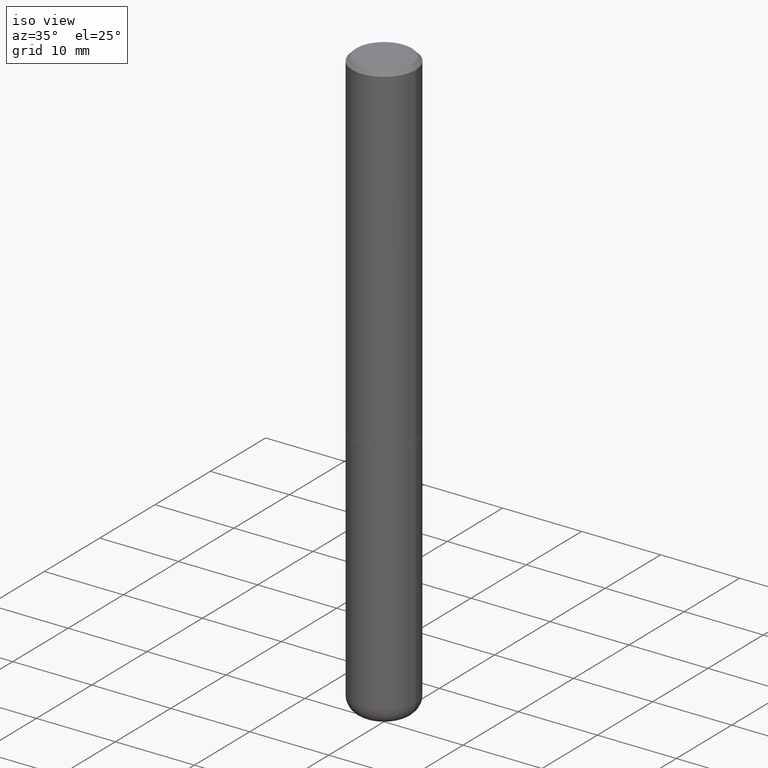
[diagram: clean part render]
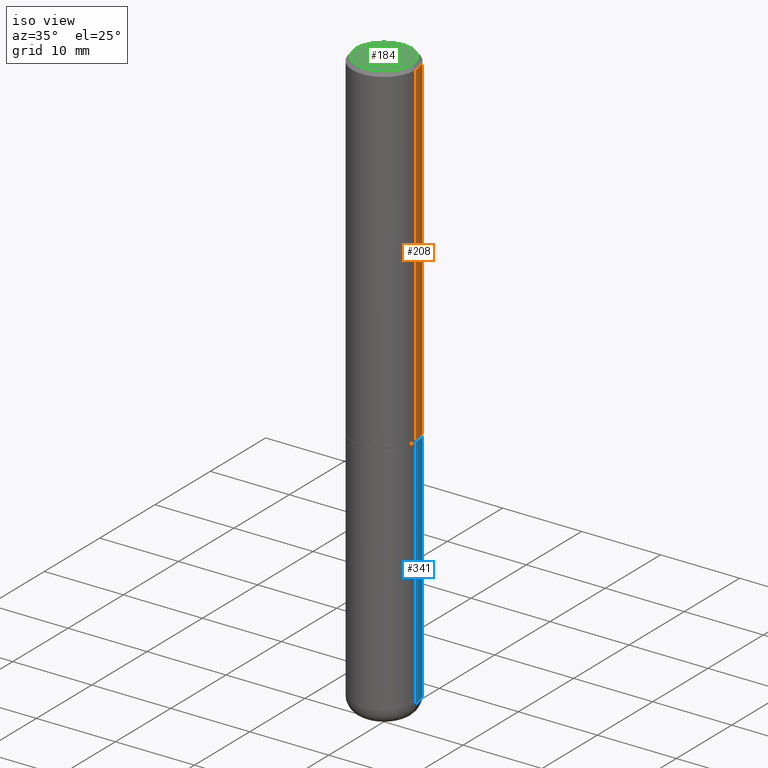
[diagram: same view with three faces highlighted in distinct colors, each labeled with its STEP entity id]
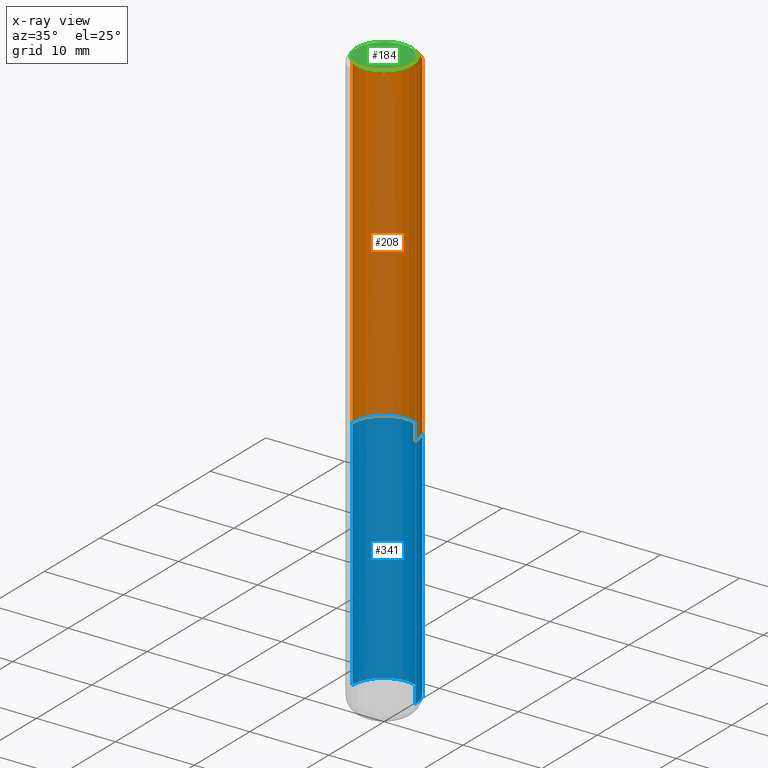
[diagram: x-ray of the same camera — body ghosted, the three highlighted faces saturated]
A machine part, iso view with three faces highlighted in distinct colors.
The next image is the same camera in x-ray (body ghosted, the three faces saturated) — at least one of them is partly hidden behind the body in this view.
Their STEP definitions:

[orange] entity #208 — the highlighted cylindrical surface (partial cylindrical patch) has radius 4.0005 mm, axis along (-0, 0, 1).
#2 = ORIENTED_EDGE ( 'NONE', *, *, #159, .T. ) ;
#7 = LINE ( 'NONE', #111, #352 ) ;
#17 = CARTESIAN_POINT ( 'NONE',  ( 4.890937612370281041E-31, -6.982962677686302702E-17, -0.02000000000000003511 ) ) ;
#33 = CARTESIAN_POINT ( 'NONE',  ( 0.1575000000000000844, -1.099816621735587677E-15, 7.679978421878603638E-30 ) ) ;
#70 = EDGE_CURVE ( 'NONE', #162, #152, #349, .T. ) ;
#77 = CYLINDRICAL_SURFACE ( 'NONE', #371, 0.1575000000000000844 ) ;
#81 = EDGE_CURVE ( 'NONE', #162, #282, #119, .T. ) ;
#86 = DIRECTION ( 'NONE',  ( 1.000000000000000000, -6.982962677686267499E-15, 0.000000000000000000 ) ) ;
#88 = CARTESIAN_POINT ( 'NONE',  ( 4.137733220065250418E-29, -5.907586425322600791E-15, -1.691999999999999504 ) ) ;
#97 = ORIENTED_EDGE ( 'NONE', *, *, #81, .T. ) ;
#103 = CIRCLE ( 'NONE', #156, 0.1575000000000000289 ) ;
#111 = CARTESIAN_POINT ( 'NONE',  ( -0.1575000000000000844, 1.119104808822158392E-15, -7.747322767151481189E-30 ) ) ;
#112 = CARTESIAN_POINT ( 'NONE',  ( 0.1575000000000001954, -7.007403047058189060E-15, -1.691999999999999504 ) ) ;
#119 = CIRCLE ( 'NONE', #182, 0.1575000000000001954 ) ;
#146 = CARTESIAN_POINT ( 'NONE',  ( 0.1575000000000000289, -1.150358061425879472E-15, -0.02000000000000003511 ) ) ;
#152 = VERTEX_POINT ( 'NONE', #146 ) ;
#154 = DIRECTION ( 'NONE',  ( -2.445468806185136597E-29, 3.491481338843145583E-15, 1.000000000000000000 ) ) ;
#156 = AXIS2_PLACEMENT_3D ( 'NONE', #17, #154, #86 ) ;
#159 = EDGE_CURVE ( 'NONE', #282, #411, #7, .T. ) ;
#162 = VERTEX_POINT ( 'NONE', #112 ) ;
#173 = DIRECTION ( 'NONE',  ( 1.000000000000000000, -6.982962677686267499E-15, 4.876176775795936353E-29 ) ) ;
#182 = AXIS2_PLACEMENT_3D ( 'NONE', #88, #256, #311 ) ;
#208 = ADVANCED_FACE ( 'NONE', ( #268 ), #77, .T. ) ;
#228 = ORIENTED_EDGE ( 'NONE', *, *, #264, .F. ) ;
#256 = DIRECTION ( 'NONE',  ( -2.445468806185136597E-29, 3.491481338843145583E-15, 1.000000000000000000 ) ) ;
#264 = EDGE_CURVE ( 'NONE', #152, #411, #103, .T. ) ;
#266 = VECTOR ( 'NONE', #355, 39.37007874015748143 ) ;
#268 = FACE_OUTER_BOUND ( 'NONE', #405, .T. ) ;
#282 = VERTEX_POINT ( 'NONE', #330 ) ;
#291 = CARTESIAN_POINT ( 'NONE',  ( 0.000000000000000000, 0.000000000000000000, 0.000000000000000000 ) ) ;
#296 = DIRECTION ( 'NONE',  ( -2.445468806185136877E-29, 3.491481338843145188E-15, 1.000000000000000000 ) ) ;
#311 = DIRECTION ( 'NONE',  ( 1.000000000000000000, -6.982962677686265922E-15, 0.000000000000000000 ) ) ;
#330 = CARTESIAN_POINT ( 'NONE',  ( -0.1575000000000001954, -1.869603217227570102E-15, -1.691999999999999504 ) ) ;
#349 = LINE ( 'NONE', #33, #266 ) ;
#352 = VECTOR ( 'NONE', #296, 39.37007874015748143 ) ;
#355 = DIRECTION ( 'NONE',  ( -2.445468806185136877E-29, 3.491481338843145188E-15, 1.000000000000000000 ) ) ;
#360 = CARTESIAN_POINT ( 'NONE',  ( -0.1575000000000000289, 1.029986994958724182E-15, -0.02000000000000003511 ) ) ;
#371 = AXIS2_PLACEMENT_3D ( 'NONE', #291, #399, #173 ) ;
#374 = ORIENTED_EDGE ( 'NONE', *, *, #70, .F. ) ;
#399 = DIRECTION ( 'NONE',  ( -2.445468806185136597E-29, 3.491481338843145583E-15, 1.000000000000000000 ) ) ;
#405 = EDGE_LOOP ( 'NONE', ( #97, #2, #228, #374 ) ) ;
#411 = VERTEX_POINT ( 'NONE', #360 ) ;

[blue] entity #341 — the highlighted cylindrical surface (partial cylindrical patch) has radius 4.0005 mm, axis along (-0, 0, 1).
#12 = EDGE_CURVE ( 'NONE', #384, #380, #241, .T. ) ;
#26 = VERTEX_POINT ( 'NONE', #196 ) ;
#46 = AXIS2_PLACEMENT_3D ( 'NONE', #388, #367, #275 ) ;
#49 = VECTOR ( 'NONE', #113, 39.37007874015748143 ) ;
#67 = VERTEX_POINT ( 'NONE', #136 ) ;
#68 = DIRECTION ( 'NONE',  ( -2.445468806185136877E-29, 3.491481338843145188E-15, 1.000000000000000000 ) ) ;
#113 = DIRECTION ( 'NONE',  ( -2.445468806185136877E-29, 3.491481338843145188E-15, 1.000000000000000000 ) ) ;
#116 = CIRCLE ( 'NONE', #407, 0.1575000000000000011 ) ;
#131 = EDGE_CURVE ( 'NONE', #380, #26, #332, .T. ) ;
#136 = CARTESIAN_POINT ( 'NONE',  ( 0.1575000000000000011, -7.010894528397031278E-15, -1.692999999999999616 ) ) ;
#163 = CARTESIAN_POINT ( 'NONE',  ( 0.1575000000000000011, -1.099816621735586889E-15, 7.679978421878598033E-30 ) ) ;
#165 = FACE_OUTER_BOUND ( 'NONE', #169, .T. ) ;
#169 = EDGE_LOOP ( 'NONE', ( #289, #188, #194, #191 ) ) ;
#170 = VECTOR ( 'NONE', #68, 39.37007874015748143 ) ;
#174 = DIRECTION ( 'NONE',  ( 1.000000000000000000, -6.982962677686268288E-15, 0.000000000000000000 ) ) ;
#187 = DIRECTION ( 'NONE',  ( -2.445468806185136597E-29, 3.491481338843145583E-15, 1.000000000000000000 ) ) ;
#188 = ORIENTED_EDGE ( 'NONE', *, *, #131, .T. ) ;
#191 = ORIENTED_EDGE ( 'NONE', *, *, #309, .F. ) ;
#194 = ORIENTED_EDGE ( 'NONE', *, *, #302, .F. ) ;
#196 = CARTESIAN_POINT ( 'NONE',  ( -0.1575000000000000011, -6.853867402493107284E-15, -1.692999999999999616 ) ) ;
#205 = CARTESIAN_POINT ( 'NONE',  ( -0.1575000000000000011, 1.119104808822157801E-15, -7.747322767151475583E-30 ) ) ;
#241 = CIRCLE ( 'NONE', #338, 0.1575000000000000011 ) ;
#275 = DIRECTION ( 'NONE',  ( 1.000000000000000000, -6.982962677686265922E-15, 4.876176775795935232E-29 ) ) ;
#288 = CARTESIAN_POINT ( 'NONE',  ( 7.028521895856700897E-29, -1.003486651596908519E-14, -2.874099999999999877 ) ) ;
#289 = ORIENTED_EDGE ( 'NONE', *, *, #12, .T. ) ;
#302 = EDGE_CURVE ( 'NONE', #67, #26, #116, .T. ) ;
#303 = CARTESIAN_POINT ( 'NONE',  ( -0.1574999999999999456, -8.915761707146927585E-15, -2.874099999999999877 ) ) ;
#309 = EDGE_CURVE ( 'NONE', #384, #67, #358, .T. ) ;
#314 = CARTESIAN_POINT ( 'NONE',  ( 4.140178688871434900E-29, -5.911077906661444587E-15, -1.692999999999999616 ) ) ;
#332 = LINE ( 'NONE', #205, #49 ) ;
#338 = AXIS2_PLACEMENT_3D ( 'NONE', #288, #187, #383 ) ;
#341 = ADVANCED_FACE ( 'NONE', ( #165 ), #417, .T. ) ;
#358 = LINE ( 'NONE', #163, #170 ) ;
#367 = DIRECTION ( 'NONE',  ( -2.445468806185136597E-29, 3.491481338843145583E-15, 1.000000000000000000 ) ) ;
#370 = CARTESIAN_POINT ( 'NONE',  ( 0.1574999999999999456, -1.113468313770467030E-14, -2.874099999999999877 ) ) ;
#380 = VERTEX_POINT ( 'NONE', #303 ) ;
#383 = DIRECTION ( 'NONE',  ( 1.000000000000000000, -6.982962677686261977E-15, 0.000000000000000000 ) ) ;
#384 = VERTEX_POINT ( 'NONE', #370 ) ;
#388 = CARTESIAN_POINT ( 'NONE',  ( 0.000000000000000000, 0.000000000000000000, 0.000000000000000000 ) ) ;
#394 = DIRECTION ( 'NONE',  ( -2.445468806185136597E-29, 3.491481338843145583E-15, 1.000000000000000000 ) ) ;
#407 = AXIS2_PLACEMENT_3D ( 'NONE', #314, #394, #174 ) ;
#417 = CYLINDRICAL_SURFACE ( 'NONE', #46, 0.1575000000000000011 ) ;

[green] entity #184 — the highlighted planar face has unit normal (0, -0, -1).
#14 = PLANE ( 'NONE',  #71 ) ;
#20 = DIRECTION ( 'NONE',  ( 1.000000000000000000, -6.982962677686267499E-15, 4.874794762600759889E-29 ) ) ;
#35 = AXIS2_PLACEMENT_3D ( 'NONE', #301, #396, #75 ) ;
#71 = AXIS2_PLACEMENT_3D ( 'NONE', #109, #392, #148 ) ;
#75 = DIRECTION ( 'NONE',  ( 1.000000000000000000, -6.982962677686267499E-15, 4.874794762600759889E-29 ) ) ;
#101 = CARTESIAN_POINT ( 'NONE',  ( -0.1375000000000000944, 9.950721815702931246E-16, -8.537024980201506648E-17 ) ) ;
#108 = FACE_OUTER_BOUND ( 'NONE', #258, .T. ) ;
#109 = CARTESIAN_POINT ( 'NONE',  ( 9.601573681818622643E-16, 0.1375000000000000944, -5.227638089919369768E-16 ) ) ;
#137 = ORIENTED_EDGE ( 'NONE', *, *, #201, .T. ) ;
#148 = DIRECTION ( 'NONE',  ( -1.000000000000000000, 6.982962677686265922E-15, -4.876176775795935793E-29 ) ) ;
#155 = CARTESIAN_POINT ( 'NONE',  ( 2.087702828670439561E-45, -2.980686340760894291E-31, -8.537024980200822558E-17 ) ) ;
#184 = ADVANCED_FACE ( 'NONE', ( #108 ), #14, .F. ) ;
#201 = EDGE_CURVE ( 'NONE', #343, #215, #401, .T. ) ;
#215 = VERTEX_POINT ( 'NONE', #294 ) ;
#258 = EDGE_LOOP ( 'NONE', ( #137, #312 ) ) ;
#267 = CIRCLE ( 'NONE', #318, 0.1375000000000000944 ) ;
#274 = DIRECTION ( 'NONE',  ( -2.445468806185136597E-29, 3.491481338843145583E-15, 1.000000000000000000 ) ) ;
#294 = CARTESIAN_POINT ( 'NONE',  ( 0.1375000000000000944, -1.046838268059733083E-15, -8.537024980200119978E-17 ) ) ;
#301 = CARTESIAN_POINT ( 'NONE',  ( 2.087702828670439561E-45, -2.980686340760894291E-31, -8.537024980200822558E-17 ) ) ;
#312 = ORIENTED_EDGE ( 'NONE', *, *, #391, .T. ) ;
#318 = AXIS2_PLACEMENT_3D ( 'NONE', #155, #274, #20 ) ;
#343 = VERTEX_POINT ( 'NONE', #101 ) ;
#391 = EDGE_CURVE ( 'NONE', #215, #343, #267, .T. ) ;
#392 = DIRECTION ( 'NONE',  ( 2.438088387897960049E-29, -3.491481338843145188E-15, -1.000000000000000000 ) ) ;
#396 = DIRECTION ( 'NONE',  ( -2.445468806185136597E-29, 3.491481338843145583E-15, 1.000000000000000000 ) ) ;
#401 = CIRCLE ( 'NONE', #35, 0.1375000000000000944 ) ;